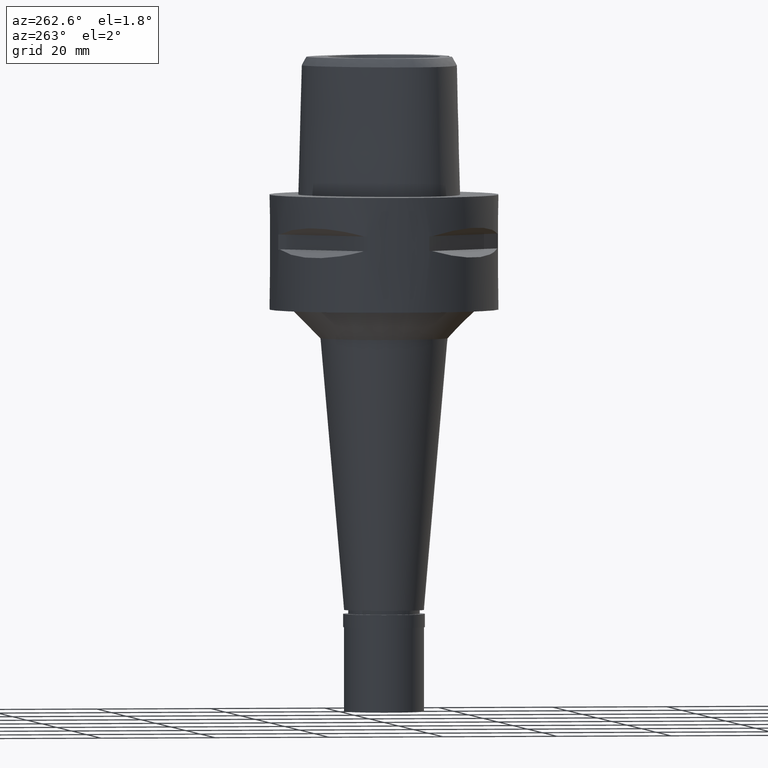
[diagram: clean part render]
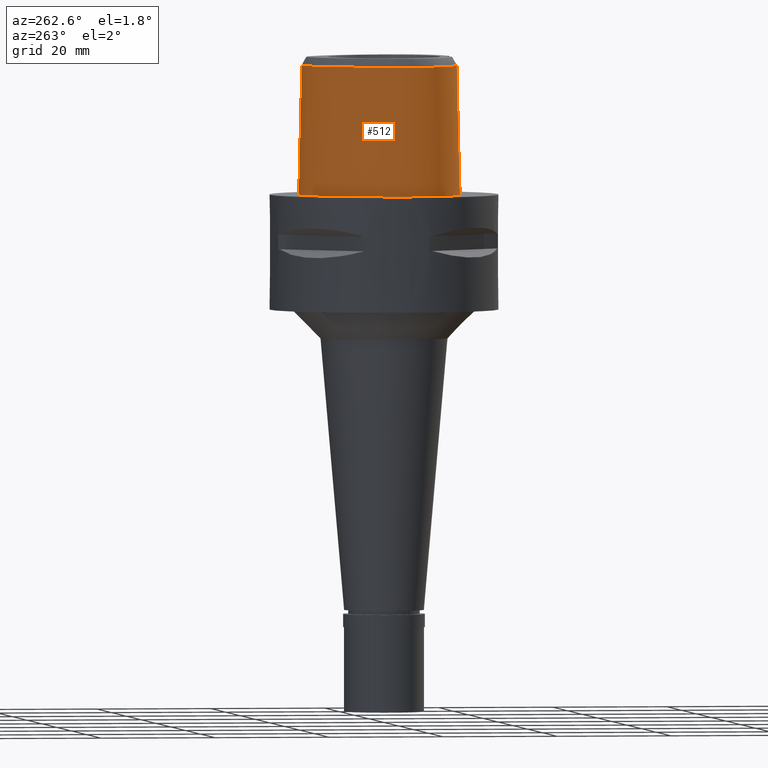
[diagram: same view with one face highlighted and labeled with its STEP entity id]
A machine part, auxiliary view. The second image highlights one B-rep face of the part: STEP entity #512.
In plain terms, the highlighted face is a freeform B-spline surface patch.
Its self-contained STEP definition (entity closure, byte-faithful):
#13 = CARTESIAN_POINT ( 'NONE',  ( -0.5076901289927644445, -12.81371963498104272, 13.74453122027835228 ) ) ;
#19 = CARTESIAN_POINT ( 'NONE',  ( -2.019766489027326806, -12.81207175110742824, 10.39910891411672900 ) ) ;
#48 = CARTESIAN_POINT ( 'NONE',  ( -13.49620532111113391, -4.288887307617305744, 22.52071717950009599 ) ) ;
#60 = CARTESIAN_POINT ( 'NONE',  ( -0.2874832976875059121, -12.93301545397000218, 9.200000000000001066 ) ) ;
#95 = CARTESIAN_POINT ( 'NONE',  ( -9.354901126245609433, -10.96475155024127623, 5.621534313353035439E-07 ) ) ;
#99 = CARTESIAN_POINT ( 'NONE',  ( -1.186941116764332671, -12.89360893903278793, 9.528488573643974391 ) ) ;
#162 = CARTESIAN_POINT ( 'NONE',  ( -0.3608217347999999602, 14.40386506194999860, 22.97118829617999936 ) ) ;
#185 = CARTESIAN_POINT ( 'NONE',  ( -1.965381169090455682, -12.75914103472368133, 12.69704529625406586 ) ) ;
#194 = CARTESIAN_POINT ( 'NONE',  ( -9.029359432076001113, 9.844403348590001102, 7.356785794202999718 ) ) ;
#204 = CARTESIAN_POINT ( 'NONE',  ( -1.599685685868289964, -12.77713978279112084, 13.15268251229367280 ) ) ;
#217 = CARTESIAN_POINT ( 'NONE',  ( -13.67906212399999966, -4.314970294877999990, 15.16398704518999985 ) ) ;
#242 = CARTESIAN_POINT ( 'NONE',  ( -14.01182760202000033, -0.1843230753446999937, -0.4504154567879000148 ) ) ;
#257 = CARTESIAN_POINT ( 'NONE',  ( 0.4604515501306999381, 14.96030145105999942, -0.4504154567879000148 ) ) ;
#271 = CARTESIAN_POINT ( 'NONE',  ( -8.879307668920999319, 9.717869147094001292, 15.16398704518999985 ) ) ;
#293 = CARTESIAN_POINT ( 'NONE',  ( -13.17288110157999981, -6.685475997624999778, 7.356785794202999718 ) ) ;
#305 = CARTESIAN_POINT ( 'NONE',  ( -1.030579237161999950, -12.61390733780999973, 22.97118829617999936 ) ) ;
#361 = VERTEX_POINT ( 'NONE', #797 ) ;
#372 = CARTESIAN_POINT ( 'NONE',  ( -3.014424021964061673, -12.39773933600387146, 22.52071717950009599 ) ) ;
#382 = CARTESIAN_POINT ( 'NONE',  ( -2.101243657610281534, -12.80041985347950551, 10.56252302173187907 ) ) ;
#405 = CARTESIAN_POINT ( 'NONE',  ( -1.634884362328469454, -12.85647614395284677, 9.882202062968850953 ) ) ;
#418 = CARTESIAN_POINT ( 'NONE',  ( -6.021703609490443476, 12.22251596750958313, 22.52071717950009599 ) ) ;
#432 = CARTESIAN_POINT ( 'NONE',  ( -0.9095774808522616439, -12.90995974590684447, 9.387481419962472984 ) ) ;
#438 = CARTESIAN_POINT ( 'NONE',  ( -13.44334616472875332, -0.2854647376912409218, 22.52071717950009599 ) ) ;
#449 = CARTESIAN_POINT ( 'NONE',  ( -2.176008645397641939, -12.78847031743437590, 10.75315525165522246 ) ) ;
#455 = CARTESIAN_POINT ( 'NONE',  ( -12.82590901148203244, -6.531187915556634138, 22.52071717950009599 ) ) ;
#509 = CARTESIAN_POINT ( 'NONE',  ( -1.531101131613375799, -12.78047346678592255, 13.21703419410644464 ) ) ;
#512 = ADVANCED_FACE ( 'NONE', ( #3426 ), #3308, .T. ) ;
#522 = EDGE_CURVE ( 'NONE', #1551, #809, #4528, .T. ) ;
#544 = CARTESIAN_POINT ( 'NONE',  ( -14.18449854174000002, -2.619126383650999923, -0.4504154567879000148 ) ) ;
#561 = CARTESIAN_POINT ( 'NONE',  ( -2.227976321915851710, -12.74978073529332612, 12.09053266542619909 ) ) ;
#570 = CARTESIAN_POINT ( 'NONE',  ( -11.84499494480000159, -9.036543430651999387, -0.4504154567879000148 ) ) ;
#594 = VERTEX_POINT ( 'NONE', #1817 ) ;
#596 = CARTESIAN_POINT ( 'NONE',  ( -6.379661316667999849, 12.67792014021999947, -0.4504154567879000148 ) ) ;
#609 = CARTESIAN_POINT ( 'NONE',  ( 0.2991395929716000324, 14.77459899960000023, 7.356785794202999718 ) ) ;
#618 = CARTESIAN_POINT ( 'NONE',  ( -7.165542352136999860, -12.04243712246999998, -0.4504154567879000148 ) ) ;
#640 = CARTESIAN_POINT ( 'NONE',  ( -13.35152085317999848, -6.764911737390000290, -0.4504154567879000148 ) ) ;
#649 = CARTESIAN_POINT ( 'NONE',  ( -1.215022923415500111, -12.79379911384162760, 13.45323690719520293 ) ) ;
#674 = ORIENTED_EDGE ( 'NONE', *, *, #2280, .F. ) ;
#696 = CARTESIAN_POINT ( 'NONE',  ( 0.8491476789321998897, -12.57247794268000085, 22.97118829617999936 ) ) ;
#700 = CARTESIAN_POINT ( 'NONE',  ( -13.21414035717440605, 2.960287495197468921, 5.621534313353035439E-07 ) ) ;
#719 = CARTESIAN_POINT ( 'NONE',  ( -3.539803248252551882, 13.67924950902632908, 22.52071717950009599 ) ) ;
#730 = CARTESIAN_POINT ( 'NONE',  ( -2.128714069397835917, -12.79613033670564981, 10.62900041007756258 ) ) ;
#738 = B_SPLINE_CURVE_WITH_KNOTS ( 'NONE', 3,
 ( #3896, #1721, #2097, #3828 ),
 .UNSPECIFIED., .F., .F.,
 ( 4, 4 ),
 ( 0.0000000000000000000, 1.000000000000000000 ),
 .UNSPECIFIED. ) ;
#745 = CARTESIAN_POINT ( 'NONE',  ( -13.73754040087197659, -5.736583199116121357, 5.621534313353035439E-07 ) ) ;
#755 = CARTESIAN_POINT ( 'NONE',  ( -12.06912915254240559, -7.841969072900782933, 22.52071717950009599 ) ) ;
#761 = CARTESIAN_POINT ( 'NONE',  ( -13.34121470080176408, -6.760328900529982477, 5.621534313353035439E-07 ) ) ;
#782 = CARTESIAN_POINT ( 'NONE',  ( -12.68166860123735518, 2.767886241324079677, 22.52071717950009599 ) ) ;
#797 = CARTESIAN_POINT ( 'NONE',  ( -3.604918449455000285E-11, -13.16299999999000114, 2.563134889517999596E-13 ) ) ;
#805 = CARTESIAN_POINT ( 'NONE',  ( -4.736458213768491632, -12.13940339377894695, 22.52071717950009599 ) ) ;
#809 = VERTEX_POINT ( 'NONE', #2105 ) ;
#827 = B_SPLINE_CURVE_WITH_KNOTS ( 'NONE', 3,
 ( #4305, #2910, #2505, #3994, #1067, #3618, #3952, #700, #3930, #1488, #2893, #745, #761, #2828, #3598, #3557, #4346, #95, #1131, #4258, #2543, #1769 ),
 .UNSPECIFIED., .F., .F.,
 ( 4, 1, 1, 1, 1, 1, 1, 1, 1, 1, 1, 1, 1, 1, 1, 1, 1, 1, 1, 4 ),
 ( 0.0000000000000000000, 0.04166666666935999602, 0.08333333333591000369, 0.1666666666691000165, 0.2500000000020999869, 0.3333333333351999883, 0.4166666666684000209, 0.5000000000015000223, 0.5416666666680000075, 0.5833333333344999927, 0.6250000000011000090, 0.6458333333343999616, 0.6666666666677000253, 0.6875000000009999779, 0.7083333333342000104, 0.7500000000008000267, 0.7916666666674000430, 0.8333333333339000282, 0.9166666666670000296, 1.000000000000000000 ),
 .UNSPECIFIED. ) ;
#883 = CARTESIAN_POINT ( 'NONE',  ( -2.299954659421390435, -12.75625696376892471, 11.53761782433739214 ) ) ;
#886 = CARTESIAN_POINT ( 'NONE',  ( -12.47264415096999990, -7.201084457308999376, 22.97118829617999936 ) ) ;
#906 = CARTESIAN_POINT ( 'NONE',  ( -12.21811935338000055, -7.950322983136000943, 15.16398704518999985 ) ) ;
#915 = EDGE_CURVE ( 'NONE', #4274, #361, #827, .T. ) ;
#932 = CARTESIAN_POINT ( 'NONE',  ( -4.045377554940999154, -12.93507169472999863, -0.4504154567879000148 ) ) ;
#935 = CARTESIAN_POINT ( 'NONE',  ( -10.81840190814000024, -9.997360707293999837, -0.4504154567879000148 ) ) ;
#951 = CARTESIAN_POINT ( 'NONE',  ( -2.183965838519273284, -12.75044518222533085, 12.23794974091928900 ) ) ;
#961 = CARTESIAN_POINT ( 'NONE',  ( -9.360479238727998919, -10.97457288462999969, -0.4504154567879000148 ) ) ;
#972 = CARTESIAN_POINT ( 'NONE',  ( -3.534957174989000084, 13.66895448296999938, 22.97118829617999936 ) ) ;
#976 = CARTESIAN_POINT ( 'NONE',  ( -1.039641952179000128, -12.80928525309999877, 15.16398704518999985 ) ) ;
#980 = CARTESIAN_POINT ( 'NONE',  ( 0.0000000000000000000, -12.81802318095999915, 13.79999999999999893 ) ) ;
#981 = CARTESIAN_POINT ( 'NONE',  ( -13.59718059893999964, -2.623279433812999883, 22.97118829617999936 ) ) ;
#1020 = CARTESIAN_POINT ( 'NONE',  ( -2.568703252653000479, -12.45023756080000155, 22.52071717950000007 ) ) ;
#1062 = CARTESIAN_POINT ( 'NONE',  ( 0.0000000000000000000, -12.81802318095999915, 13.79999999999999893 ) ) ;
#1067 = CARTESIAN_POINT ( 'NONE',  ( -6.372642512329132813, 12.66899061385603886, 5.621534313353035439E-07 ) ) ;
#1095 = CARTESIAN_POINT ( 'NONE',  ( -1.718089452111125626, -12.84798141225785884, 9.970080914280250894 ) ) ;
#1118 = CARTESIAN_POINT ( 'NONE',  ( -1.918541340087976055, -12.82519875845433610, 10.23142291930723680 ) ) ;
#1131 = CARTESIAN_POINT ( 'NONE',  ( -7.161686380652859896, -12.03179217420948888, 5.621534313353035439E-07 ) ) ;
#1137 = CARTESIAN_POINT ( 'NONE',  ( -1.640508289874371695, -12.85591189267231726, 9.887914011555560378 ) ) ;
#1164 = CARTESIAN_POINT ( 'NONE',  ( -2.140818054875475607, -12.79421544317908044, 10.65916695742716236 ) ) ;
#1171 = CARTESIAN_POINT ( 'NONE',  ( -11.42690036616687088, -8.639965951773906028, 22.52071717950009599 ) ) ;
#1196 = CARTESIAN_POINT ( 'NONE',  ( -0.3811409319783999883, 14.79504104994000002, 7.356785794201999629 ) ) ;
#1233 = CARTESIAN_POINT ( 'NONE',  ( -12.06000610725999955, -7.835334290049001282, 22.97118829617999936 ) ) ;
#1243 = CARTESIAN_POINT ( 'NONE',  ( -1.743182819679340412, -12.76985850484020801, 13.00949378163825543 ) ) ;
#1258 = CARTESIAN_POINT ( 'NONE',  ( -13.37282161559999949, -5.628458935538000141, 15.16398704518999985 ) ) ;
#1280 = EDGE_CURVE ( 'NONE', #2690, #2838, #4030, .T. ) ;
#1282 = CARTESIAN_POINT ( 'NONE',  ( -12.99424134999000024, -6.606040257860000153, 15.16398704518999985 ) ) ;
#1308 = CARTESIAN_POINT ( 'NONE',  ( -2.110983287377224293, -12.75301312505877505, 12.41313858344890697 ) ) ;
#1327 = CARTESIAN_POINT ( 'NONE',  ( -0.8725053692016667695, -12.80534412171216374, 13.62809993309842227 ) ) ;
#1331 = CARTESIAN_POINT ( 'NONE',  ( -3.618945399415999908, 13.84737955248000141, 15.16398704518999985 ) ) ;
#1341 = CARTESIAN_POINT ( 'NONE',  ( -6.258002193300999494, 12.52314187642000043, 7.356785794202999718 ) ) ;
#1349 = CARTESIAN_POINT ( 'NONE',  ( -1.310388299896435793, -12.79012495374146852, 13.39282819299125471 ) ) ;
#1357 = CARTESIAN_POINT ( 'NONE',  ( -2.052257535513170250, -12.75532541179809876, 12.53899606075888862 ) ) ;
#1402 = CARTESIAN_POINT ( 'NONE',  ( -1.057767382213000040, -13.20004108368000217, -0.4504154567879000148 ) ) ;
#1426 = CARTESIAN_POINT ( 'NONE',  ( -0.5822071197416890387, -12.81237477686261350, 13.72645420493745405 ) ) ;
#1433 = CARTESIAN_POINT ( 'NONE',  ( -1.673248811335473096, -12.85260161382745814, 9.921754379538944235 ) ) ;
#1457 = CARTESIAN_POINT ( 'NONE',  ( -0.9849742298881855040, -12.90597246736640358, 9.421110627547726324 ) ) ;
#1465 = CARTESIAN_POINT ( 'NONE',  ( -6.946551618187000727E-11, 14.40001989798000182, 22.52071729252999788 ) ) ;
#1488 = CARTESIAN_POINT ( 'NONE',  ( -14.17320395182041715, -2.619206250099948452, 5.621534313353035439E-07 ) ) ;
#1494 = CARTESIAN_POINT ( 'NONE',  ( -1.969910983246881075, -12.81869256422031000, 10.31262443829331588 ) ) ;
#1512 = CARTESIAN_POINT ( 'NONE',  ( -0.8888449650067348218, -12.91101050024774111, 9.378667603440709044 ) ) ;
#1533 = CARTESIAN_POINT ( 'NONE',  ( -2.287739433440815429, -12.76562514723386954, 11.21900773401831941 ) ) ;
#1551 = VERTEX_POINT ( 'NONE', #1777 ) ;
#1563 = VERTEX_POINT ( 'NONE', #2855 ) ;
#1575 = CARTESIAN_POINT ( 'NONE',  ( -1.634303317113000142, 14.85806844714999997, -0.4504154567879000148 ) ) ;
#1615 = CARTESIAN_POINT ( 'NONE',  ( -13.22478983216999993, 2.964135534684000373, -0.4504154567879000148 ) ) ;
#1639 = CARTESIAN_POINT ( 'NONE',  ( -12.81132617613999969, -7.396622616230000169, 7.356785794202999718 ) ) ;
#1652 = CARTESIAN_POINT ( 'NONE',  ( 0.4485687354669000149, 14.76550215931000132, 7.356785794202999718 ) ) ;
#1662 = CARTESIAN_POINT ( 'NONE',  ( -13.81861775648000012, -0.2186981027020000190, 7.356785794202999718 ) ) ;
#1676 = CARTESIAN_POINT ( 'NONE',  ( 0.2912660267216999888, 14.57955072829000187, 15.16398704518999985 ) ) ;
#1677 = CARTESIAN_POINT ( 'NONE',  ( -6.946551618187000727E-11, 14.40001989798000182, 22.52071729252999788 ) ) ;
#1682 = CARTESIAN_POINT ( 'NONE',  ( 0.8566252902491999777, -12.76751111945999995, 15.16398704518999985 ) ) ;
#1689 = CARTESIAN_POINT ( 'NONE',  ( -14.06716929503000202, -4.370330523420000723, -0.4504154567879000148 ) ) ;
#1721 = CARTESIAN_POINT ( 'NONE',  ( -0.8728572879726697042, -12.66303360443533776, 19.99999964626607607 ) ) ;
#1769 = CARTESIAN_POINT ( 'NONE',  ( -3.604918449455000285E-11, -13.16299999999000114, 2.563134889517999596E-13 ) ) ;
#1773 = EDGE_CURVE ( 'NONE', #594, #1551, #4586, .T. ) ;
#1777 = CARTESIAN_POINT ( 'NONE',  ( 0.0000000000000000000, -12.81802318095999915, 13.79999999999999893 ) ) ;
#1786 = CARTESIAN_POINT ( 'NONE',  ( -2.568703252653000479, -12.45023756080000155, 22.52071717950000007 ) ) ;
#1795 = CARTESIAN_POINT ( 'NONE',  ( -1.826614785176106759, -12.83619389624117169, 10.10030211943920442 ) ) ;
#1817 = CARTESIAN_POINT ( 'NONE',  ( -1.260417588442999891E-08, -12.66301535847000004, 19.99999996345999875 ) ) ;
#1833 = LINE ( 'NONE', #3352, #2723 ) ;
#1839 = CARTESIAN_POINT ( 'NONE',  ( -1.376826303559832487, -12.88005367082842234, 9.651461278334078742 ) ) ;
#1867 = DIRECTION ( 'NONE',  ( -3.429013054828931268E-12, -0.02499051295351950933, -0.9996876883618802667 ) ) ;
#1910 = CARTESIAN_POINT ( 'NONE',  ( -1.572442784162447316, -12.77847749354090645, 13.17862368342302126 ) ) ;
#1915 = CARTESIAN_POINT ( 'NONE',  ( -0.3913005305677000334, 14.99062904393000117, -0.4504154567879000148 ) ) ;
#1920 = CARTESIAN_POINT ( 'NONE',  ( -2.299051152410461984, -12.75540343360559170, 11.57550461518733265 ) ) ;
#1945 = CARTESIAN_POINT ( 'NONE',  ( -12.81560159838999979, -6.526604518095000529, 22.97118829617999936 ) ) ;
#1951 = CARTESIAN_POINT ( 'NONE',  ( -2.568703252653000479, -12.45023756080000155, 22.52071717950000007 ) ) ;
#1971 = CARTESIAN_POINT ( 'NONE',  ( -11.41870140033000069, -8.632188943013000326, 22.97118829617999936 ) ) ;
#1996 = CARTESIAN_POINT ( 'NONE',  ( -13.04019916262999956, 2.897436266830000218, 7.356785794202999718 ) ) ;
#2017 = CARTESIAN_POINT ( 'NONE',  ( -6.965032085215000279, -11.48890050376999916, 22.97118829617999936 ) ) ;
#2022 = CARTESIAN_POINT ( 'NONE',  ( -2.603602235252999719, -12.50961233210999879, 20.00000000000000000 ) ) ;
#2026 = CARTESIAN_POINT ( 'NONE',  ( -1.115122107177778155, -12.79751351971169981, 13.51197287549117831 ) ) ;
#2042 = CARTESIAN_POINT ( 'NONE',  ( -6.014683946567000561, 12.21358534882999791, 22.97118829617999936 ) ) ;
#2047 = CARTESIAN_POINT ( 'NONE',  ( -2.592184074245229120, -12.48966619601136152, 20.84023905983333336 ) ) ;
#2076 = CARTESIAN_POINT ( 'NONE',  ( 0.5764111308057000560, -12.97358036534000014, 7.356785794202999718 ) ) ;
#2097 = CARTESIAN_POINT ( 'NONE',  ( -1.745770171471966004, -12.61172390494604656, 19.99999964626607607 ) ) ;
#2100 = CARTESIAN_POINT ( 'NONE',  ( -0.2858517507593017482, -12.81694729446526004, 13.78713083143738061 ) ) ;
#2105 = CARTESIAN_POINT ( 'NONE',  ( -4.492408841822999740E-12, -12.93301545397000041, 9.199999999999999289 ) ) ;
#2125 = CARTESIAN_POINT ( 'NONE',  ( -0.5039711950876220037, 14.40001990035042034, 22.52071717950009244 ) ) ;
#2133 = CARTESIAN_POINT ( 'NONE',  ( -1.123979912784872637, -12.89773223912000866, 9.492128831742684625 ) ) ;
#2144 = CARTESIAN_POINT ( 'NONE',  ( -9.075996546496417849, -10.47368666962651496, 22.52071717950009599 ) ) ;
#2205 = CARTESIAN_POINT ( 'NONE',  ( -13.19588017073914266, -5.576003004572067212, 22.52071717950009599 ) ) ;
#2273 = ORIENTED_EDGE ( 'NONE', *, *, #1280, .F. ) ;
#2280 = EDGE_CURVE ( 'NONE', #809, #361, #1833, .T. ) ;
#2294 = CARTESIAN_POINT ( 'NONE',  ( -12.37623259951000065, -8.065311676224000692, 7.356785794202999718 ) ) ;
#2300 = CARTESIAN_POINT ( 'NONE',  ( -2.580556363467072067, -12.46988388374901824, 21.68047811966666671 ) ) ;
#2343 = ORIENTED_EDGE ( 'NONE', *, *, #522, .F. ) ;
#2352 = CARTESIAN_POINT ( 'NONE',  ( -0.9444833768055068690, -12.80325991351078585, 13.59827252792601726 ) ) ;
#2357 = CARTESIAN_POINT ( 'NONE',  ( 0.3070131592213999894, 14.96964727091000036, -0.4504154567879000148 ) ) ;
#2368 = CARTESIAN_POINT ( 'NONE',  ( -13.98872589413999989, -2.620510733704999762, 7.356785794202999718 ) ) ;
#2381 = CARTESIAN_POINT ( 'NONE',  ( -1.513572579637000093, 14.28153419560000081, 22.97118829617999936 ) ) ;
#2386 = CARTESIAN_POINT ( 'NONE',  ( -0.1403102924828914244, -12.81802318095999560, 13.79999999999999716 ) ) ;
#2391 = CARTESIAN_POINT ( 'NONE',  ( -11.00320905484000100, 6.352725990165000169, 22.97118829617999936 ) ) ;
#2411 = CARTESIAN_POINT ( 'NONE',  ( -3.941817099921999912, -12.35544356900000018, 22.97118829617999936 ) ) ;
#2451 = CARTESIAN_POINT ( 'NONE',  ( 0.8641029015663000967, -12.96254429624999993, 7.356785794202999718 ) ) ;
#2472 = ORIENTED_EDGE ( 'NONE', *, *, #2581, .T. ) ;
#2505 = CARTESIAN_POINT ( 'NONE',  ( -1.631981569263802667, 14.84698123616712451, 5.621534313353035439E-07 ) ) ;
#2528 = CARTESIAN_POINT ( 'NONE',  ( -2.000810607956859943, -12.81464058992268740, 10.36492425939625939 ) ) ;
#2543 = CARTESIAN_POINT ( 'NONE',  ( -1.347795335082658585, -13.16299998594871212, 5.621534313353035439E-07 ) ) ;
#2548 = CARTESIAN_POINT ( 'NONE',  ( -0.5893108739880226210, -12.92583016295865583, 9.254663186098008865 ) ) ;
#2572 = CARTESIAN_POINT ( 'NONE',  ( -0.9320567637891206125, -12.90880245723032793, 9.397206546725282550 ) ) ;
#2581 = EDGE_CURVE ( 'NONE', #594, #2838, #738, .T. ) ;
#2582 = CARTESIAN_POINT ( 'NONE',  ( -13.60847657048531723, -2.623199557594281028, 22.52071717950009599 ) ) ;
#2612 = CARTESIAN_POINT ( 'NONE',  ( -0.3709813333892000298, 14.59945305594000153, 15.16398704518999985 ) ) ;
#2638 = CARTESIAN_POINT ( 'NONE',  ( -1.841961542686893827, -12.76495427194052468, 12.88554682333725943 ) ) ;
#2646 = CARTESIAN_POINT ( 'NONE',  ( -1.553816158795999991, 14.47371227944999994, 15.16398704518999985 ) ) ;
#2656 = CARTESIAN_POINT ( 'NONE',  ( -10.69740335681000154, -9.843145426697999412, 7.356785794202999718 ) ) ;
#2680 = CARTESIAN_POINT ( 'NONE',  ( -13.87311570951000128, -4.342650409148999913, 7.356785794202999718 ) ) ;
#2690 = VERTEX_POINT ( 'NONE', #1020 ) ;
#2703 = CARTESIAN_POINT ( 'NONE',  ( -11.70289709665000011, -8.901758601439000884, 7.356785794202999718 ) ) ;
#2722 = CARTESIAN_POINT ( 'NONE',  ( 0.4366859208029999495, 14.57070286755000055, 15.16398704518999985 ) ) ;
#2723 = VECTOR ( 'NONE', #1867, 1000.000000000000114 ) ;
#2729 = VECTOR ( 'NONE', #3104, 999.9999999999998863 ) ;
#2737 = CARTESIAN_POINT ( 'NONE',  ( -13.62540791095000081, -0.2530731300592000133, 15.16398704518999985 ) ) ;
#2745 = CARTESIAN_POINT ( 'NONE',  ( -1.011460031911137758, -12.80112857899388779, 13.56714229465747223 ) ) ;
#2749 = CARTESIAN_POINT ( 'NONE',  ( -3.786921848270000002, 14.20422969151000103, -0.4504154567879000148 ) ) ;
#2750 = CARTESIAN_POINT ( 'NONE',  ( -2.603602235252999719, -12.50961233210999879, 20.00000000000000000 ) ) ;
#2753 = CARTESIAN_POINT ( 'NONE',  ( -1.048704667195999862, -13.00466316839000136, 7.356785794202999718 ) ) ;
#2762 = CARTESIAN_POINT ( 'NONE',  ( -7.098705596495999970, -11.85792491624000000, 7.356785794202999718 ) ) ;
#2801 = CARTESIAN_POINT ( 'NONE',  ( -2.120492599624728136, -12.75266936454860556, 12.39084564623783713 ) ) ;
#2810 = EDGE_CURVE ( 'NONE', #1563, #4274, #3452, .T. ) ;
#2826 = CARTESIAN_POINT ( 'NONE',  ( 0.8715805128833999937, -13.15757747302999903, -0.4504154567879000148 ) ) ;
#2828 = CARTESIAN_POINT ( 'NONE',  ( -12.97089750273342901, -7.488751164835187879, 5.621534313353035439E-07 ) ) ;
#2838 = VERTEX_POINT ( 'NONE', #2750 ) ;
#2843 = CARTESIAN_POINT ( 'NONE',  ( -0.6941451993942554521, -12.80995403224944873, 13.69309787889147856 ) ) ;
#2855 = CARTESIAN_POINT ( 'NONE',  ( -6.946551618187000727E-11, 14.40001989798000182, 22.52071729252999788 ) ) ;
#2862 = ORIENTED_EDGE ( 'NONE', *, *, #915, .T. ) ;
#2893 = CARTESIAN_POINT ( 'NONE',  ( -14.05597388189266894, -4.368733591757427703, 5.621534313353035439E-07 ) ) ;
#2905 = CARTESIAN_POINT ( 'NONE',  ( -12.48241503205640157, -7.206725678149306091, 22.52071717950009599 ) ) ;
#2910 = CARTESIAN_POINT ( 'NONE',  ( -0.5439938563515879233, 14.96299998595256575, 5.621533826552594741E-07 ) ) ;
#2915 = CARTESIAN_POINT ( 'NONE',  ( -1.754980417513038349, -12.84404270155433814, 10.01290125858658797 ) ) ;
#2920 = EDGE_CURVE ( 'NONE', #2690, #1563, #3474, .T. ) ;
#2937 = CARTESIAN_POINT ( 'NONE',  ( -1.871505803615489238, -12.83099951415757545, 10.16091756888976505 ) ) ;
#2997 = CARTESIAN_POINT ( 'NONE',  ( -1.594059737953999800, 14.66589036329999907, 7.356785794202999718 ) ) ;
#3038 = CARTESIAN_POINT ( 'NONE',  ( -11.51281501635999938, 6.646926451174000050, -0.4504154567879000148 ) ) ;
#3060 = CARTESIAN_POINT ( 'NONE',  ( -13.56059763082000025, -5.684126875285000047, 7.356785794202999718 ) ) ;
#3083 = EDGE_LOOP ( 'NONE', ( #674, #2343, #3350, #2472, #2273, #3892, #3798, #2862 ) ) ;
#3088 = CARTESIAN_POINT ( 'NONE',  ( -9.263792076372999063, -10.80433663436000025, 7.356785794202999718 ) ) ;
#3101 = CARTESIAN_POINT ( 'NONE',  ( 0.2833924604719000317, 14.38450245696999907, 22.97118829617999936 ) ) ;
#3104 = DIRECTION ( 'NONE',  ( 7.961499765927040193E-12, 0.02499051293254009320, -0.9996876883624048471 ) ) ;
#3107 = CARTESIAN_POINT ( 'NONE',  ( -0.8433160123823181253, -12.80616741610975851, 13.63984074129042945 ) ) ;
#3109 = CARTESIAN_POINT ( 'NONE',  ( -2.100763192154185610, -12.75339016836832151, 12.43664698164637628 ) ) ;
#3112 = CARTESIAN_POINT ( 'NONE',  ( -4.232668831591364374E-09, -12.76635998234247005, 15.86666680636513327 ) ) ;
#3116 = CARTESIAN_POINT ( 'NONE',  ( -12.64198516356000113, -7.298853536770000261, 15.16398704518999985 ) ) ;
#3125 = CARTESIAN_POINT ( 'NONE',  ( -1.150497061337859783, -12.79622030622930140, 13.49192661308281593 ) ) ;
#3131 = CARTESIAN_POINT ( 'NONE',  ( -0.7501532717173563514, -12.80864279558398700, 13.67486048525683273 ) ) ;
#3168 = CARTESIAN_POINT ( 'NONE',  ( -2.227604279474354687, -12.77917410137013299, 10.92215258421425439 ) ) ;
#3173 = CARTESIAN_POINT ( 'NONE',  ( 0.5714334844256999668, -12.77845893439000058, 15.16398704518999985 ) ) ;
#3215 = CARTESIAN_POINT ( 'NONE',  ( -10.46238780241939281, -9.543613000371241384, 22.52071717950009599 ) ) ;
#3253 = CARTESIAN_POINT ( 'NONE',  ( -2.245574213331936075, -12.77549557077301401, 10.99693584441538619 ) ) ;
#3293 = CARTESIAN_POINT ( 'NONE',  ( -8.737913808019980522, 9.598635897784784987, 22.52071717950009599 ) ) ;
#3308 = B_SPLINE_SURFACE_WITH_KNOTS ( 'NONE', 3, 3, ( 
 ( #257, #1652, #2722, #4171 ),
 ( #2357, #609, #1676, #3101 ),
 ( #1915, #1196, #2612, #162 ),
 ( #1575, #2997, #2646, #2381 ),
 ( #2749, #4192, #1331, #972 ),
 ( #596, #1341, #3413, #2042 ),
 ( #3839, #194, #271, #3464 ),
 ( #3038, #3765, #4472, #2391 ),
 ( #1615, #1996, #3737, #4154 ),
 ( #242, #1662, #2737, #4182 ),
 ( #544, #2368, #4492, #981 ),
 ( #1689, #2680, #217, #3438 ),
 ( #3491, #3060, #1258, #4444 ),
 ( #640, #293, #1282, #1945 ),
 ( #3386, #1639, #3116, #886 ),
 ( #4127, #2294, #906, #1233 ),
 ( #570, #2703, #4547, #1971 ),
 ( #935, #2656, #4102, #3795 ),
 ( #961, #3088, #4520, #3815 ),
 ( #618, #2762, #4200, #2017 ),
 ( #932, #3831, #3506, #2411 ),
 ( #1402, #2753, #976, #305 ),
 ( #4578, #2076, #3173, #4603 ),
 ( #2826, #2451, #1682, #696 ) ),
 .UNSPECIFIED., .F., .F., .F.,
 ( 4, 1, 1, 1, 1, 1, 1, 1, 1, 1, 1, 1, 1, 1, 1, 1, 1, 1, 1, 1, 1, 4 ),
 ( 4, 4 ),
 ( -0.01174028709063000032, 0.0000000000000000000, 0.04166666666935999602, 0.08333333333591000369, 0.1666666666691000165, 0.2500000000020999869, 0.3333333333351999883, 0.4166666666684000209, 0.5000000000015000223, 0.5416666666680000075, 0.5833333333344999927, 0.6250000000011000090, 0.6458333333343999616, 0.6666666666677000253, 0.6875000000009999779, 0.7083333333342000104, 0.7500000000008000267, 0.7916666666674000430, 0.8333333333339000282, 0.9166666666670000296, 1.000000000000000000, 1.017964572395999800 ),
 ( -4.309501096602999838E-08, 1.000002197845999863 ),
 .UNSPECIFIED. ) ;
#3350 = ORIENTED_EDGE ( 'NONE', *, *, #1773, .F. ) ;
#3352 = CARTESIAN_POINT ( 'NONE',  ( -4.492408841822999740E-12, -12.93301545397000041, 9.199999999999999289 ) ) ;
#3386 = CARTESIAN_POINT ( 'NONE',  ( -12.98066718872999914, -7.494391695690000077, -0.4504154567879000148 ) ) ;
#3397 = CARTESIAN_POINT ( 'NONE',  ( -1.488364584968258075, -12.78243766139195259, 13.25390592172606752 ) ) ;
#3413 = CARTESIAN_POINT ( 'NONE',  ( -6.136343069933999139, 12.36836361261999961, 15.16398704518999985 ) ) ;
#3426 = FACE_OUTER_BOUND ( 'NONE', #3083, .T. ) ;
#3438 = CARTESIAN_POINT ( 'NONE',  ( -13.48500853848000069, -4.287290180608000156, 22.97118829617999936 ) ) ;
#3452 = LINE ( 'NONE', #1677, #2729 ) ;
#3453 = CARTESIAN_POINT ( 'NONE',  ( -2.271415585613556498, -12.75092741660073870, 11.86921953824261600 ) ) ;
#3461 = CARTESIAN_POINT ( 'NONE',  ( -4.222930115606270254E-09, -12.71469678372774403, 17.93333361273028714 ) ) ;
#3464 = CARTESIAN_POINT ( 'NONE',  ( -8.729255905766001078, 9.591334945597999706, 22.97118829617999936 ) ) ;
#3474 = B_SPLINE_CURVE_WITH_KNOTS ( 'NONE', 3,
 ( #1786, #372, #805, #3987, #2144, #3215, #1171, #755, #2905, #455, #2205, #48, #2582, #438, #782, #3612, #3293, #418, #719, #3594, #2125, #1465 ),
 .UNSPECIFIED., .F., .F.,
 ( 4, 1, 1, 1, 1, 1, 1, 1, 1, 1, 1, 1, 1, 1, 1, 1, 1, 1, 1, 4 ),
 ( 0.0000000000000000000, 0.03040433083237776071, 0.1185493916655191021, 0.1626219220820368794, 0.2066944524986604470, 0.2507669829152840424, 0.2728032481234900497, 0.2948395133318018058, 0.3168757785401136173, 0.3389120437484253734, 0.3829845741650489410, 0.4270571045815667044, 0.4711296349980844678, 0.5592746958312257988, 0.6474197566644729340, 0.7355648174976142650, 0.8237098783306499028, 0.9118549391638863799, 0.9559274695804570454, 1.000000000000000000 ),
 .UNSPECIFIED. ) ;
#3491 = CARTESIAN_POINT ( 'NONE',  ( -13.74837364604000101, -5.739794815033000042, -0.4504154567879000148 ) ) ;
#3500 = CARTESIAN_POINT ( 'NONE',  ( -1.401134457179029180, -12.78632367908535983, 13.32550889154766516 ) ) ;
#3506 = CARTESIAN_POINT ( 'NONE',  ( -3.976337251594999955, -12.54865294424000055, 15.16398704518999985 ) ) ;
#3528 = CARTESIAN_POINT ( 'NONE',  ( -2.075748694847023401, -12.75435432503534727, 12.49165210687314520 ) ) ;
#3557 = CARTESIAN_POINT ( 'NONE',  ( -11.83679698179042461, -9.028767373107676519, 5.621534313353035439E-07 ) ) ;
#3582 = CARTESIAN_POINT ( 'NONE',  ( -1.031058361330478013, -12.90332450527950137, 9.443756331633766266 ) ) ;
#3594 = CARTESIAN_POINT ( 'NONE',  ( -1.515894611543026071, 14.29262276282678457, 22.52071717950009599 ) ) ;
#3598 = CARTESIAN_POINT ( 'NONE',  ( -12.52522391619974229, -8.173666397969531872, 5.621534313353035439E-07 ) ) ;
#3612 = CARTESIAN_POINT ( 'NONE',  ( -11.01301038052947234, 6.358384390486166104, 22.52071717950009599 ) ) ;
#3618 = CARTESIAN_POINT ( 'NONE',  ( -9.170754351935949344, 9.963637490888661574, 5.621534313353035439E-07 ) ) ;
#3626 = CARTESIAN_POINT ( 'NONE',  ( -2.133345763553627261, -12.79540209355282698, 10.64038496831959613 ) ) ;
#3632 = CARTESIAN_POINT ( 'NONE',  ( -2.292828358692528212, -12.75331188549386852, 11.68520341081849878 ) ) ;
#3647 = CARTESIAN_POINT ( 'NONE',  ( -1.953844692669016059, -12.82076823038780233, 10.28621941685110031 ) ) ;
#3718 = CARTESIAN_POINT ( 'NONE',  ( -2.295488942509813945, -12.75394953065040582, 11.64855188699454125 ) ) ;
#3737 = CARTESIAN_POINT ( 'NONE',  ( -12.85560849308000009, 2.830736998974999974, 15.16398704518999985 ) ) ;
#3765 = CARTESIAN_POINT ( 'NONE',  ( -11.34294636251999933, 6.548859630836999735, 7.356785794201999629 ) ) ;
#3795 = CARTESIAN_POINT ( 'NONE',  ( -10.45540625413000058, -9.534714865504998471, 22.97118829617999936 ) ) ;
#3798 = ORIENTED_EDGE ( 'NONE', *, *, #2810, .T. ) ;
#3815 = CARTESIAN_POINT ( 'NONE',  ( -9.070417751664001216, -10.46386413383000047, 22.97118829617999936 ) ) ;
#3828 = CARTESIAN_POINT ( 'NONE',  ( -2.603602235252999719, -12.50961233210999879, 20.00000000000000000 ) ) ;
#3831 = CARTESIAN_POINT ( 'NONE',  ( -4.010857403267999111, -12.74186231949000003, 7.356785794202999718 ) ) ;
#3839 = CARTESIAN_POINT ( 'NONE',  ( -9.179411195230001042, 9.970937550086000911, -0.4504154567879000148 ) ) ;
#3892 = ORIENTED_EDGE ( 'NONE', *, *, #2920, .T. ) ;
#3896 = CARTESIAN_POINT ( 'NONE',  ( -1.260417588442999891E-08, -12.66301535847000004, 19.99999996345999875 ) ) ;
#3930 = CARTESIAN_POINT ( 'NONE',  ( -14.00068086624995800, -0.1863062524750843663, 5.621534313353035439E-07 ) ) ;
#3935 = CARTESIAN_POINT ( 'NONE',  ( -2.072198022030605102, -12.80476266681110253, 10.49916696187997012 ) ) ;
#3952 = CARTESIAN_POINT ( 'NONE',  ( -11.50301488948407957, 6.641268742939463010, 5.621533757970472583E-07 ) ) ;
#3978 = CARTESIAN_POINT ( 'NONE',  ( -0.8946376090512322410, -12.91071892410844946, 9.381111259846703021 ) ) ;
#3987 = CARTESIAN_POINT ( 'NONE',  ( -6.968888528385980052, -11.49954675418853434, 22.52071717950009599 ) ) ;
#3994 = CARTESIAN_POINT ( 'NONE',  ( -3.782076367736298739, 14.19393592465239173, 5.621534313353035439E-07 ) ) ;
#4024 = CARTESIAN_POINT ( 'NONE',  ( -4.492408841822999740E-12, -12.93301545397000041, 9.199999999999999289 ) ) ;
#4030 = B_SPLINE_CURVE_WITH_KNOTS ( 'NONE', 3,
 ( #1951, #2300, #2047, #2022 ),
 .UNSPECIFIED., .F., .F.,
 ( 4, 4 ),
 ( 0.0000000000000000000, 1.000000000000000000 ),
 .UNSPECIFIED. ) ;
#4075 = CARTESIAN_POINT ( 'NONE',  ( -2.151815339312906250, -12.79245367337239259, 10.68734984394975207 ) ) ;
#4097 = CARTESIAN_POINT ( 'NONE',  ( 1.098891838312000073E-10, 14.96299999997000008, 2.569426153324000136E-13 ) ) ;
#4102 = CARTESIAN_POINT ( 'NONE',  ( -10.57640480546999839, -9.688930146100998897, 15.16398704518999985 ) ) ;
#4127 = CARTESIAN_POINT ( 'NONE',  ( -12.53434584562999987, -8.180300369312000441, -0.4504154567879000148 ) ) ;
#4154 = CARTESIAN_POINT ( 'NONE',  ( -12.67101782352999884, 2.764037731121000263, 22.97118829617999936 ) ) ;
#4171 = CARTESIAN_POINT ( 'NONE',  ( 0.4248031061390999952, 14.37590357578999978, 22.97118829617999936 ) ) ;
#4182 = CARTESIAN_POINT ( 'NONE',  ( -13.43219806541999972, -0.2874481574164000075, 22.97118829617999936 ) ) ;
#4192 = CARTESIAN_POINT ( 'NONE',  ( -3.702933623843000177, 14.02580462200000078, 7.356785794202999718 ) ) ;
#4200 = CARTESIAN_POINT ( 'NONE',  ( -7.031868840856000169, -11.67341271001000180, 15.16398704518999985 ) ) ;
#4258 = CARTESIAN_POINT ( 'NONE',  ( -4.043386005243490011, -12.92392498609266305, 5.621534313353035439E-07 ) ) ;
#4274 = VERTEX_POINT ( 'NONE', #4097 ) ;
#4275 = CARTESIAN_POINT ( 'NONE',  ( -0.8153956452063725324, -12.80693650684623641, 13.65077363465389659 ) ) ;
#4281 = CARTESIAN_POINT ( 'NONE',  ( -2.194269820041964358, -12.78527448139194611, 10.80955661179305416 ) ) ;
#4305 = CARTESIAN_POINT ( 'NONE',  ( 1.098891838312000073E-10, 14.96299999997000008, 2.569426153324000136E-13 ) ) ;
#4311 = CARTESIAN_POINT ( 'NONE',  ( -1.653654199777173872, -12.85458706573202470, 9.901401716864198121 ) ) ;
#4333 = CARTESIAN_POINT ( 'NONE',  ( -1.504906784536498510, -12.86943633476858473, 9.752081626204873288 ) ) ;
#4336 = CARTESIAN_POINT ( 'NONE',  ( -1.260417588442999891E-08, -12.66301535847000004, 19.99999996345999875 ) ) ;
#4338 = CARTESIAN_POINT ( 'NONE',  ( -2.282144080696049127, -12.75166686898744928, 11.79541011857741850 ) ) ;
#4346 = CARTESIAN_POINT ( 'NONE',  ( -10.81142121377389742, -9.988463660770809938, 5.621534313353035439E-07 ) ) ;
#4349 = CARTESIAN_POINT ( 'NONE',  ( -2.300172330228513751, -12.76059842254409382, 11.36394181801946068 ) ) ;
#4351 = CARTESIAN_POINT ( 'NONE',  ( -1.925228206125526365, -12.82436843121989334, 10.24158435592574357 ) ) ;
#4374 = CARTESIAN_POINT ( 'NONE',  ( -1.936807342263392684, -12.82291841508332197, 10.25947958587262576 ) ) ;
#4429 = CARTESIAN_POINT ( 'NONE',  ( -1.611855237301563326, -12.77653310095185724, 13.14083777303401668 ) ) ;
#4444 = CARTESIAN_POINT ( 'NONE',  ( -13.18504560038000051, -5.572790995790000146, 22.97118829617999936 ) ) ;
#4472 = CARTESIAN_POINT ( 'NONE',  ( -11.17307770867999928, 6.450792810501000396, 15.16398704518999985 ) ) ;
#4492 = CARTESIAN_POINT ( 'NONE',  ( -13.79295324653999799, -2.621895083759000045, 15.16398704518999985 ) ) ;
#4520 = CARTESIAN_POINT ( 'NONE',  ( -9.167104914018999295, -10.63410038409999991, 15.16398704518999985 ) ) ;
#4528 = B_SPLINE_CURVE_WITH_KNOTS ( 'NONE', 3,
 ( #1062, #2386, #2100, #13, #1426, #2843, #3131, #4275, #3107, #4537, #1327, #2352, #2745, #2026, #3125, #649, #1349, #3500, #3397, #509, #1910, #204, #4429, #1243, #2638, #185, #4580, #1357, #3528, #3109, #1308, #4540, #2801, #951, #561, #3453, #4338, #3632, #3718, #1920, #883, #4349, #1533, #3253, #3168, #4281, #449, #4075, #1164, #3626, #730, #382, #3935, #19, #2528, #1494, #3647, #4374, #4351, #1118, #2937, #1795, #2915, #1095, #1433, #4311, #1137, #405, #4333, #1839, #99, #2133, #3582, #1457, #2572, #432, #3978, #1512, #2548, #60, #4024 ),
 .UNSPECIFIED., .F., .F.,
 ( 4, 2, 2, 1, 1, 2, 2, 2, 2, 1, 2, 1, 2, 2, 2, 2, 1, 1, 2, 2, 2, 2, 2, 2, 2, 2, 1, 1, 2, 2, 2, 2, 1, 2, 2, 2, 1, 1, 2, 2, 2, 2, 1, 1, 2, 2, 4 ),
 ( 0.0000000000000000000, 0.06249999999999458766, 0.09374999999999196476, 0.1093749999999905631, 0.1171874999999898831, 0.1210937499999896472, 0.1249999999999894251, 0.1562499999999872324, 0.1718749999999862055, 0.1874999999999851508, 0.2187499999999829303, 0.2343749999999821254, 0.2421874999999819589, 0.2499999999999817923, 0.3124999999999796829, 0.3437499999999789613, 0.3593749999999781841, 0.3671874999999775180, 0.3710937499999775180, 0.3749999999999775180, 0.4374999999999839018, 0.4687499999999871214, 0.4843749999999886757, 0.4999999999999903411, 0.5624999999999974465, 0.5937500000000011102, 0.6093750000000032196, 0.6171875000000039968, 0.6210937500000046629, 0.6250000000000052180, 0.6562500000000053291, 0.6718750000000053291, 0.6796875000000054401, 0.6835937500000054401, 0.6875000000000054401, 0.7187500000000026645, 0.7343750000000016653, 0.7421875000000011102, 0.7460937500000011102, 0.7500000000000011102, 0.8125000000000015543, 0.8437500000000019984, 0.8593750000000022204, 0.8671875000000024425, 0.8710937500000023315, 0.8750000000000021094, 1.000000000000000000 ),
 .UNSPECIFIED. ) ;
#4537 = CARTESIAN_POINT ( 'NONE',  ( -0.8619184025633666035, -12.80564628358887269, 13.63241575733940891 ) ) ;
#4540 = CARTESIAN_POINT ( 'NONE',  ( -2.117686842732387831, -12.75276979989476978, 12.39748256155045070 ) ) ;
#4547 = CARTESIAN_POINT ( 'NONE',  ( -11.56079924849000129, -8.766973772226000605, 15.16398704518999985 ) ) ;
#4578 = CARTESIAN_POINT ( 'NONE',  ( 0.5813887771856999231, -13.16870179629000148, -0.4504154567879000148 ) ) ;
#4580 = CARTESIAN_POINT ( 'NONE',  ( -2.002418915924612186, -12.75746047434017783, 12.63376087007782367 ) ) ;
#4586 = B_SPLINE_CURVE_WITH_KNOTS ( 'NONE', 3,
 ( #4336, #3461, #3112, #980 ),
 .UNSPECIFIED., .F., .F.,
 ( 4, 4 ),
 ( 0.0000000000000000000, 1.000000000000000000 ),
 .UNSPECIFIED. ) ;
#4603 = CARTESIAN_POINT ( 'NONE',  ( 0.5664558380456999886, -12.58333750345000013, 22.97118829617999936 ) ) ;